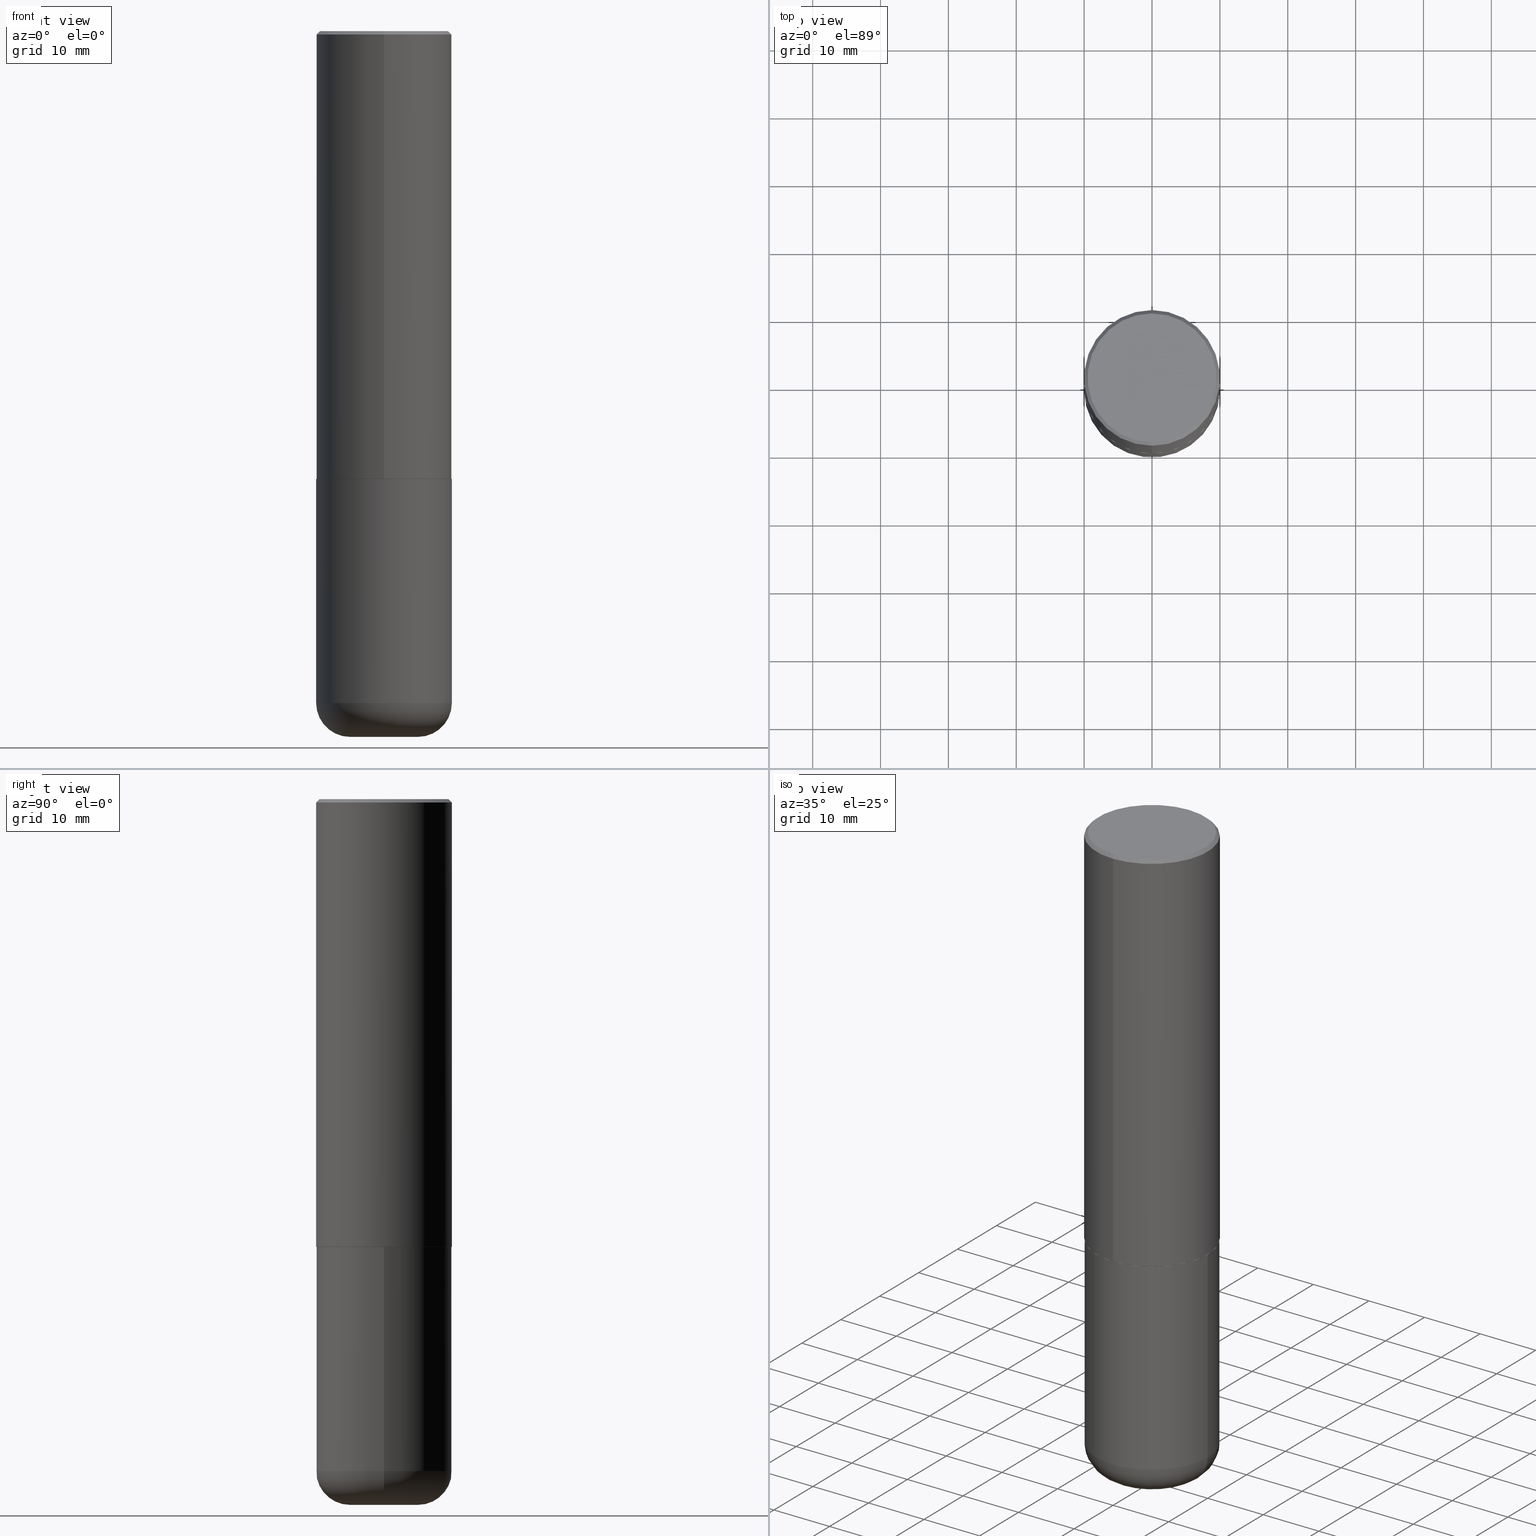
[diagram: canonical four-view strip — front | top / right | iso, engineering-drawing reading convention]
A machine part, canonical four-view strip (front | top / right | iso — engineering-drawing reading convention). The complete STEP part file that produces these views, byte-faithful:
ISO-10303-21;
HEADER;
FILE_DESCRIPTION (( 'STEP AP203' ),
    '1' );
FILE_NAME ('46869.STEP',
    '2024-03-05T05:34:44',
    ( '' ),
    ( '' ),
    'SwSTEP 2.0',
    'SolidWorks 2023',
    '' );
FILE_SCHEMA (( 'CONFIG_CONTROL_DESIGN' ));
ENDSEC;

DATA;
#1 = FACE_OUTER_BOUND ( 'NONE', #233, .T. ) ;
#2 = ORIENTED_EDGE ( 'NONE', *, *, #174, .F. ) ;
#3 = CIRCLE ( 'NONE', #248, 0.3937000000000002720 ) ;
#4 = FACE_OUTER_BOUND ( 'NONE', #323, .T. ) ;
#5 = CC_DESIGN_APPROVAL ( #382, ( #288 ) ) ;
#6 = ORIENTED_EDGE ( 'NONE', *, *, #39, .T. ) ;
#7 = PLANE ( 'NONE',  #223 ) ;
#8 = DIRECTION ( 'NONE',  ( -2.443239332009390457E-29, 3.494674072756603537E-15, 1.000000000000000000 ) ) ;
#9 = CARTESIAN_POINT ( 'NONE',  ( 4.886478664018802704E-31, -6.989348145513235967E-17, -0.02000000000000008715 ) ) ;
#10 = DIRECTION ( 'NONE',  ( -2.443239332009390737E-29, 3.494674072756603537E-15, 1.000000000000000000 ) ) ;
#11 = COORDINATED_UNIVERSAL_TIME_OFFSET ( 5, 0, .BEHIND. ) ;
#12 = CIRCLE ( 'NONE', #104, 0.3736999999999999211 ) ;
#13 =( GEOMETRIC_REPRESENTATION_CONTEXT ( 3 ) GLOBAL_UNCERTAINTY_ASSIGNED_CONTEXT ( ( #209 ) ) GLOBAL_UNIT_ASSIGNED_CONTEXT ( ( #237, #348, #187 ) ) REPRESENTATION_CONTEXT ( 'NONE', 'WORKASPACE' ) );
#14 = DIRECTION ( 'NONE',  ( -2.445468806185136877E-29, 3.491481338843145188E-15, 1.000000000000000000 ) ) ;
#15 = PERSON_AND_ORGANIZATION ( #222, #96 ) ;
#16 = CARTESIAN_POINT ( 'NONE',  ( -2.700978061722651252E-15, -0.3937000000000001054, -0.01999999999999870978 ) ) ;
#17 = CARTESIAN_POINT ( 'NONE',  ( 0.000000000000000000, 0.000000000000000000, 0.000000000000000000 ) ) ;
#18 = DIRECTION ( 'NONE',  ( 6.982962677686265922E-15, 1.000000000000000000, -3.494674072756603537E-15 ) ) ;
#19 = MANIFOLD_SOLID_BREP ( 'Body-Move/Copy2[2]', #21 ) ;
#20 = COORDINATED_UNIVERSAL_TIME_OFFSET ( 5, 0, .BEHIND. ) ;
#21 = CLOSED_SHELL ( 'NONE', ( #180, #405, #304, #379, #152, #144, #193, #238 ) ) ;
#22 = DIRECTION ( 'NONE',  ( 1.000000000000000000, -6.982962677686267499E-15, 0.000000000000000000 ) ) ;
#23 = ORIENTED_EDGE ( 'NONE', *, *, #30, .F. ) ;
#24 = EDGE_CURVE ( 'NONE', #324, #380, #330, .T. ) ;
#25 = CARTESIAN_POINT ( 'NONE',  ( 6.346069840961192103E-29, -9.077066436578000720E-15, -2.597399999999999931 ) ) ;
#26 = CIRCLE ( 'NONE', #299, 0.3926999999999999935 ) ;
#27 = CC_DESIGN_SECURITY_CLASSIFICATION ( #288, ( #331 ) ) ;
#28 = MANIFOLD_SOLID_BREP ( 'Body-Move/Copy2[1]', #313 ) ;
#29 = CARTESIAN_POINT ( 'NONE',  ( 4.886478664018802704E-31, -6.989348145513235967E-17, -0.02000000000000008715 ) ) ;
#30 = EDGE_CURVE ( 'NONE', #236, #157, #206, .T. ) ;
#31 = ORIENTED_EDGE ( 'NONE', *, *, #271, .T. ) ;
#32 = APPROVAL ( #170, 'UNSPECIFIED' ) ;
#33 = ORIENTED_EDGE ( 'NONE', *, *, #136, .T. ) ;
#34 = CIRCLE ( 'NONE', #274, 0.1968000000000000582 ) ;
#35 = ORIENTED_EDGE ( 'NONE', *, *, #24, .T. ) ;
#36 = ORIENTED_EDGE ( 'NONE', *, *, #284, .F. ) ;
#37 = DIRECTION ( 'NONE',  ( 1.000000000000000000, -6.982962677686269077E-15, 4.883557194083114022E-29 ) ) ;
#38 = ORIENTED_EDGE ( 'NONE', *, *, #186, .T. ) ;
#39 = EDGE_CURVE ( 'NONE', #63, #268, #89, .T. ) ;
#40 = AXIS2_PLACEMENT_3D ( 'NONE', #29, #74, #195 ) ;
#41 = CARTESIAN_POINT ( 'NONE',  ( -2.749192406205021291E-15, -0.3937000000000093758, -2.597399999999998155 ) ) ;
#42 = CYLINDRICAL_SURFACE ( 'NONE', #68, 0.3937000000000000499 ) ;
#43 = FACE_OUTER_BOUND ( 'NONE', #216, .T. ) ;
#44 = PERSON_AND_ORGANIZATION ( #222, #96 ) ;
#45 = CARTESIAN_POINT ( 'NONE',  ( -0.1968000000000000582, -1.185425657675245696E-14, -4.094500000000000028 ) ) ;
#46 = PERSON_AND_ORGANIZATION ( #222, #96 ) ;
#47 = AXIS2_PLACEMENT_3D ( 'NONE', #377, #221, #86 ) ;
#48 = LOCAL_TIME ( 0, 34, 44.00000000000000000, #175 ) ;
#49 = ADVANCED_FACE ( 'NONE', ( #50 ), #340, .T. ) ;
#50 = FACE_OUTER_BOUND ( 'NONE', #389, .T. ) ;
#51 = LINE ( 'NONE', #16, #352 ) ;
#52 = APPROVAL ( #83, 'UNSPECIFIED' ) ;
#53 = APPLICATION_PROTOCOL_DEFINITION ( 'international standard', 'config_control_design', 1994, #414 ) ;
#54 = DIRECTION ( 'NONE',  ( -2.445468806185136597E-29, 3.491481338843145583E-15, 1.000000000000000000 ) ) ;
#55 = APPROVAL_STATUS ( 'not_yet_approved' ) ;
#56 = CIRCLE ( 'NONE', #138, 0.3937000000000002720 ) ;
#57 = DIRECTION ( 'NONE',  ( -2.445468806185136597E-29, 3.491481338843145583E-15, 1.000000000000000000 ) ) ;
#58 = CC_DESIGN_APPROVAL ( #52, ( #331 ) ) ;
#59 = DIRECTION ( 'NONE',  ( -6.982962677686265133E-15, -1.000000000000000000, 4.173946514383900962E-15 ) ) ;
#60 = ORIENTED_EDGE ( 'NONE', *, *, #401, .T. ) ;
#61 = CARTESIAN_POINT ( 'NONE',  ( 6.354306145991459756E-29, -9.072265110850031044E-15, -2.598400000000000265 ) ) ;
#62 = EDGE_CURVE ( 'NONE', #64, #350, #177, .T. ) ;
#63 = VERTEX_POINT ( 'NONE', #173 ) ;
#64 = VERTEX_POINT ( 'NONE', #45 ) ;
#65 = EDGE_CURVE ( 'NONE', #236, #349, #395, .T. ) ;
#66 = ORIENTED_EDGE ( 'NONE', *, *, #217, .T. ) ;
#67 = PRODUCT ( '46869', '46869', '', ( #111 ) ) ;
#68 = AXIS2_PLACEMENT_3D ( 'NONE', #234, #106, #127 ) ;
#69 = ORIENTED_EDGE ( 'NONE', *, *, #65, .F. ) ;
#70 = CARTESIAN_POINT ( 'NONE',  ( -4.513619861201807074E-45, 6.456031587477974852E-31, 1.847391617377768550E-16 ) ) ;
#71 = EDGE_LOOP ( 'NONE', ( #197, #31, #124, #327 ) ) ;
#72 = DIRECTION ( 'NONE',  ( -2.445468806185136597E-29, 3.491481338843145583E-15, 1.000000000000000000 ) ) ;
#73 = DIRECTION ( 'NONE',  ( -2.443239332009390737E-29, 3.494674072756603537E-15, 1.000000000000000000 ) ) ;
#74 = DIRECTION ( 'NONE',  ( 2.443239332009390737E-29, -3.494674072756603537E-15, -1.000000000000000000 ) ) ;
#75 = LINE ( 'NONE', #205, #386 ) ;
#76 = CARTESIAN_POINT ( 'NONE',  ( 2.790301323329976493E-15, 0.3926999999999909452, -2.598400000000002041 ) ) ;
#77 = FACE_OUTER_BOUND ( 'NONE', #258, .T. ) ;
#78 = APPROVAL_ROLE ( '' ) ;
#79 = AXIS2_PLACEMENT_3D ( 'NONE', #150, #184, #408 ) ;
#80 = CONICAL_SURFACE ( 'NONE', #40, 0.3937000000000000499, 0.7853981633974447263 ) ;
#81 = DIRECTION ( 'NONE',  ( -4.851104656540946920E-15, -0.7071067811865474617, -0.7071067811865475727 ) ) ;
#82 = DIRECTION ( 'NONE',  ( -2.443239332009390177E-29, 3.494674072756603537E-15, 1.000000000000000000 ) ) ;
#83 = APPROVAL_STATUS ( 'not_yet_approved' ) ;
#84 = DIRECTION ( 'NONE',  ( 1.000000000000000000, -6.982962677686267499E-15, 0.000000000000000000 ) ) ;
#85 = ORIENTED_EDGE ( 'NONE', *, *, #196, .F. ) ;
#86 = DIRECTION ( 'NONE',  ( 1.000000000000000000, -6.982962677686269077E-15, 4.883557194083114022E-29 ) ) ;
#87 = DIRECTION ( 'NONE',  ( 1.000000000000000000, -6.982962677686265922E-15, 4.876176775795935793E-29 ) ) ;
#88 = CC_DESIGN_PERSON_AND_ORGANIZATION_ASSIGNMENT ( #15, #167, ( #331 ) ) ;
#89 = CIRCLE ( 'NONE', #381, 0.3937000000000000499 ) ;
#90 = PRODUCT_DEFINITION_SHAPE ( 'NONE', 'NONE',  #176 ) ;
#91 = ORIENTED_EDGE ( 'NONE', *, *, #256, .T. ) ;
#92 = ORIENTED_EDGE ( 'NONE', *, *, #256, .F. ) ;
#93 = DIRECTION ( 'NONE',  ( -6.982962677686266711E-15, -1.000000000000000000, 3.491481338843145583E-15 ) ) ;
#94 = ORIENTED_EDGE ( 'NONE', *, *, #401, .F. ) ;
#95 = CONICAL_SURFACE ( 'NONE', #369, 0.3926999999999999935, 0.7853981633974141952 ) ;
#96 = ORGANIZATION ( 'UNSPECIFIED', 'UNSPECIFIED', '' ) ;
#97 = CARTESIAN_POINT ( 'NONE',  ( 0.000000000000000000, 0.000000000000000000, 0.000000000000000000 ) ) ;
#98 = ORIENTED_EDGE ( 'NONE', *, *, #271, .F. ) ;
#99 = EDGE_CURVE ( 'NONE', #125, #63, #107, .T. ) ;
#100 = CARTESIAN_POINT ( 'NONE',  ( -2.742209443527332910E-15, -0.3927000000000090973, -2.598399999999998489 ) ) ;
#101 = FACE_OUTER_BOUND ( 'NONE', #188, .T. ) ;
#102 = CC_DESIGN_DATE_AND_TIME_ASSIGNMENT ( #208, #113, ( #288 ) ) ;
#103 = CARTESIAN_POINT ( 'NONE',  ( 2.679362779428219918E-15, 0.3736999999999999211, -1.121220539251365287E-15 ) ) ;
#104 = AXIS2_PLACEMENT_3D ( 'NONE', #344, #412, #345 ) ;
#105 = LOCAL_TIME ( 0, 34, 44.00000000000000000, #20 ) ;
#106 = DIRECTION ( 'NONE',  ( -2.445468806185136597E-29, 3.491481338843145583E-15, 1.000000000000000000 ) ) ;
#107 = LINE ( 'NONE', #110, #160 ) ;
#108 = EDGE_CURVE ( 'NONE', #324, #64, #34, .T. ) ;
#109 = PERSON_AND_ORGANIZATION ( #222, #96 ) ;
#110 = CARTESIAN_POINT ( 'NONE',  ( 2.749192406205083217E-15, 0.3936999999999999389, -0.02000000000000146105 ) ) ;
#111 = MECHANICAL_CONTEXT ( 'NONE', #132, 'mechanical' ) ;
#112 = FACE_OUTER_BOUND ( 'NONE', #287, .T. ) ;
#113 = DATE_TIME_ROLE ( 'classification_date' ) ;
#114 = AXIS2_PLACEMENT_3D ( 'NONE', #342, #54, #22 ) ;
#115 = EDGE_CURVE ( 'NONE', #380, #189, #75, .T. ) ;
#116 = FACE_OUTER_BOUND ( 'NONE', #353, .T. ) ;
#117 = LINE ( 'NONE', #215, #308 ) ;
#118 = ORIENTED_EDGE ( 'NONE', *, *, #136, .F. ) ;
#119 = AXIS2_PLACEMENT_3D ( 'NONE', #9, #257, #356 ) ;
#120 = ORIENTED_EDGE ( 'NONE', *, *, #30, .T. ) ;
#121 = DIRECTION ( 'NONE',  ( -4.937700262164378437E-15, -0.7071067811865208164, 0.7071067811865739960 ) ) ;
#122 = DIRECTION ( 'NONE',  ( -2.443239332009390737E-29, 3.494674072756603537E-15, 1.000000000000000000 ) ) ;
#123 = CONICAL_SURFACE ( 'NONE', #374, 0.3926999999999999935, 0.7853981633974141952 ) ;
#124 = ORIENTED_EDGE ( 'NONE', *, *, #129, .T. ) ;
#125 = VERTEX_POINT ( 'NONE', #103 ) ;
#126 = VERTEX_POINT ( 'NONE', #239 ) ;
#127 = DIRECTION ( 'NONE',  ( 1.000000000000000000, -6.982962677686265922E-15, 4.876176775795935793E-29 ) ) ;
#128 = ORIENTED_EDGE ( 'NONE', *, *, #129, .F. ) ;
#129 = EDGE_CURVE ( 'NONE', #182, #268, #366, .T. ) ;
#130 =( LENGTH_UNIT ( ) NAMED_UNIT ( * ) SI_UNIT ( $, .METRE. ) );
#131 = DIRECTION ( 'NONE',  ( -6.982962677686265133E-15, -1.000000000000000000, 4.173946514383900962E-15 ) ) ;
#132 = APPLICATION_CONTEXT ( 'configuration controlled 3d designs of mechanical parts and assemblies' ) ;
#133 = DIRECTION ( 'NONE',  ( -1.000000000000000000, 6.982962677686265922E-15, -4.876176775795935793E-29 ) ) ;
#134 = DIRECTION ( 'NONE',  ( -6.982962677686265922E-15, -1.000000000000000000, 4.163344669033672479E-15 ) ) ;
#135 = LENGTH_MEASURE_WITH_UNIT ( LENGTH_MEASURE( 0.02539999999999999897 ), #130 );
#136 = EDGE_CURVE ( 'NONE', #350, #126, #139, .T. ) ;
#137 = DIRECTION ( 'NONE',  ( -2.445468806185136597E-29, 3.491481338843145583E-15, 1.000000000000000000 ) ) ;
#138 = AXIS2_PLACEMENT_3D ( 'NONE', #141, #399, #134 ) ;
#139 = LINE ( 'NONE', #171, #267 ) ;
#140 = APPROVAL_ROLE ( '' ) ;
#141 = CARTESIAN_POINT ( 'NONE',  ( 6.346069840961192103E-29, -9.077066436578000720E-15, -2.597399999999999931 ) ) ;
#142 = CALENDAR_DATE ( 2024, 5, 3 ) ;
#143 = DIRECTION ( 'NONE',  ( -2.445468806185136597E-29, 3.491481338843145583E-15, 1.000000000000000000 ) ) ;
#144 = ADVANCED_FACE ( 'NONE', ( #77 ), #95, .T. ) ;
#145 = CARTESIAN_POINT ( 'NONE',  ( 2.793854037008779363E-15, 0.3926999999999909452, -2.598400000000002041 ) ) ;
#146 = CALENDAR_DATE ( 2024, 5, 3 ) ;
#147 = ORIENTED_EDGE ( 'NONE', *, *, #217, .F. ) ;
#148 = EDGE_LOOP ( 'NONE', ( #292, #33, #147, #297 ) ) ;
#149 = CIRCLE ( 'NONE', #114, 0.3937000000000000499 ) ;
#150 = CARTESIAN_POINT ( 'NONE',  ( 6.354306145991459756E-29, -9.072265110850031044E-15, -2.598400000000000265 ) ) ;
#151 = CARTESIAN_POINT ( 'NONE',  ( 0.1968000000000000582, -1.567011739686191959E-14, -4.094500000000000028 ) ) ;
#152 = ADVANCED_FACE ( 'NONE', ( #392 ), #202, .T. ) ;
#153 = APPLICATION_PROTOCOL_DEFINITION ( 'international standard', 'config_control_design', 1994, #132 ) ;
#154 = ORIENTED_EDGE ( 'NONE', *, *, #108, .F. ) ;
#155 = EDGE_LOOP ( 'NONE', ( #417, #262, #35, #85 ) ) ;
#156 = ORIENTED_EDGE ( 'NONE', *, *, #210, .T. ) ;
#157 = VERTEX_POINT ( 'NONE', #100 ) ;
#158 = CARTESIAN_POINT ( 'NONE',  ( -0.3936999999999999389, -1.081099091558753178E-14, -3.897600000000000620 ) ) ;
#159 = ORIENTED_EDGE ( 'NONE', *, *, #196, .T. ) ;
#160 = VECTOR ( 'NONE', #390, 39.37007874015748143 ) ;
#161 = CC_DESIGN_DATE_AND_TIME_ASSIGNMENT ( #371, #397, ( #176 ) ) ;
#162 = LINE ( 'NONE', #303, #360 ) ;
#163 = CARTESIAN_POINT ( 'NONE',  ( -2.632373081744935921E-15, -0.3736999999999999211, 1.490698862726919145E-15 ) ) ;
#164 = EDGE_CURVE ( 'NONE', #410, #268, #51, .T. ) ;
#165 = PLANE ( 'NONE',  #416 ) ;
#166 = DIMENSIONAL_EXPONENTS ( 1.000000000000000000, 0.000000000000000000, 0.000000000000000000, 0.000000000000000000, 0.000000000000000000, 0.000000000000000000, 0.000000000000000000 ) ;
#167 = PERSON_AND_ORGANIZATION_ROLE ( 'creator' ) ;
#168 = CARTESIAN_POINT ( 'NONE',  ( 1.001297202692504215E-28, -1.429587034189326149E-14, -4.094500000000000028 ) ) ;
#169 = AXIS2_PLACEMENT_3D ( 'NONE', #251, #318, #317 ) ;
#170 = APPROVAL_STATUS ( 'not_yet_approved' ) ;
#171 = CARTESIAN_POINT ( 'NONE',  ( -0.3937000000000000499, 2.797406750687514786E-15, -1.936584745033356735E-29 ) ) ;
#172 = APPROVAL_ROLE ( '' ) ;
#173 = CARTESIAN_POINT ( 'NONE',  ( 2.749192406205083217E-15, 0.3936999999999999389, -0.02000000000000146105 ) ) ;
#174 = EDGE_CURVE ( 'NONE', #182, #349, #56, .T. ) ;
#175 = COORDINATED_UNIVERSAL_TIME_OFFSET ( 5, 0, .BEHIND. ) ;
#176 = PRODUCT_DEFINITION ( 'UNKNOWN', '', #331, #228 ) ;
#177 = CIRCLE ( 'NONE', #259, 0.1968999999999999084 ) ;
#178 = APPROVAL_PERSON_ORGANIZATION ( #109, #382, #140 ) ;
#179 = DIRECTION ( 'NONE',  ( -2.443239332009390737E-29, 3.494674072756603537E-15, 1.000000000000000000 ) ) ;
#180 = ADVANCED_FACE ( 'NONE', ( #112 ), #123, .T. ) ;
#181 = CARTESIAN_POINT ( 'NONE',  ( -2.700978061722651252E-15, -0.3937000000000001054, -0.01999999999999870978 ) ) ;
#182 = VERTEX_POINT ( 'NONE', #41 ) ;
#183 = VECTOR ( 'NONE', #277, 39.37007874015748143 ) ;
#184 = DIRECTION ( 'NONE',  ( -2.445468806185136597E-29, 3.491481338843145583E-15, 1.000000000000000000 ) ) ;
#185 = TOROIDAL_SURFACE ( 'NONE', #320, 0.1968000000000000305, 0.1968999999999998807 ) ;
#186 = EDGE_CURVE ( 'NONE', #349, #63, #162, .T. ) ;
#187 =( NAMED_UNIT ( * ) SI_UNIT ( $, .STERADIAN. ) SOLID_ANGLE_UNIT ( ) );
#188 = EDGE_LOOP ( 'NONE', ( #194, #351, #385, #6 ) ) ;
#189 = VERTEX_POINT ( 'NONE', #272 ) ;
#190 = AXIS2_PLACEMENT_3D ( 'NONE', #61, #143, #84 ) ;
#191 = CIRCLE ( 'NONE', #347, 0.1968000000000000582 ) ;
#192 = ORIENTED_EDGE ( 'NONE', *, *, #265, .T. ) ;
#193 = ADVANCED_FACE ( 'NONE', ( #43 ), #165, .F. ) ;
#194 = ORIENTED_EDGE ( 'NONE', *, *, #164, .F. ) ;
#195 = DIRECTION ( 'NONE',  ( 6.982962677686265133E-15, 1.000000000000000000, -3.491137977679279424E-15 ) ) ;
#196 = EDGE_CURVE ( 'NONE', #350, #380, #242, .T. ) ;
#197 = ORIENTED_EDGE ( 'NONE', *, *, #186, .F. ) ;
#198 = DIRECTION ( 'NONE',  ( -2.443239332009390737E-29, 3.494674072756603537E-15, 1.000000000000000000 ) ) ;
#199 = CARTESIAN_POINT ( 'NONE',  ( 1.001297202692504215E-28, -1.429587034189326149E-14, -4.094500000000000028 ) ) ;
#200 = AXIS2_PLACEMENT_3D ( 'NONE', #199, #335, #273 ) ;
#201 = DIRECTION ( 'NONE',  ( -2.445468806185136597E-29, 3.491481338843145583E-15, 1.000000000000000000 ) ) ;
#202 = CYLINDRICAL_SURFACE ( 'NONE', #325, 0.3937000000000001609 ) ;
#203 = CALENDAR_DATE ( 2024, 5, 3 ) ;
#204 = DIRECTION ( 'NONE',  ( -6.982962677686265133E-15, -1.000000000000000000, 4.173946514383900962E-15 ) ) ;
#205 = CARTESIAN_POINT ( 'NONE',  ( 0.3937000000000000499, -2.749192406205083217E-15, 1.919750796630860172E-29 ) ) ;
#206 = CIRCLE ( 'NONE', #393, 0.3926999999999999935 ) ;
#207 = LOCAL_TIME ( 0, 34, 44.00000000000000000, #11 ) ;
#208 = DATE_AND_TIME ( #146, #48 ) ;
#209 = UNCERTAINTY_MEASURE_WITH_UNIT (LENGTH_MEASURE( 1.000000000000000082E-05 ), #237, 'distance_accuracy_value', 'NONE');
#210 = EDGE_CURVE ( 'NONE', #126, #189, #346, .T. ) ;
#211 = CARTESIAN_POINT ( 'NONE',  ( 6.348513080293200615E-29, -9.080561110650760527E-15, -2.598400000000000265 ) ) ;
#212 = DIRECTION ( 'NONE',  ( 0.000000000000000000, 0.000000000000000000, 1.000000000000000000 ) ) ;
#213 = CYLINDRICAL_SURFACE ( 'NONE', #231, 0.3937000000000000499 ) ;
#214 = DATE_AND_TIME ( #285, #105 ) ;
#215 = CARTESIAN_POINT ( 'NONE',  ( -2.742209443527332910E-15, -0.3927000000000090973, -2.598399999999998489 ) ) ;
#216 = EDGE_LOOP ( 'NONE', ( #252, #23 ) ) ;
#217 = EDGE_CURVE ( 'NONE', #189, #126, #338, .T. ) ;
#218 = LOCAL_TIME ( 0, 34, 44.00000000000000000, #309 ) ;
#219 = CARTESIAN_POINT ( 'NONE',  ( 2.609533152651356620E-15, 0.3736999999999999211, -1.213590120120253998E-15 ) ) ;
#220 = ORIENTED_EDGE ( 'NONE', *, *, #99, .F. ) ;
#221 = DIRECTION ( 'NONE',  ( -2.445468806185136597E-29, 3.491481338843145583E-15, 1.000000000000000000 ) ) ;
#222 = PERSON ( 'UNSPECIFIED', 'UNSPECIFIED', 'UNSPECIFIED', ('UNSPECIFIED'), ('UNSPECIFIED'), ('UNSPECIFIED') ) ;
#223 = AXIS2_PLACEMENT_3D ( 'NONE', #291, #391, #133 ) ;
#224 = LOCAL_TIME ( 0, 34, 44.00000000000000000, #404 ) ;
#225 = EDGE_CURVE ( 'NONE', #157, #182, #117, .T. ) ;
#226 = ORIENTED_EDGE ( 'NONE', *, *, #62, .T. ) ;
#227 = ORIENTED_EDGE ( 'NONE', *, *, #108, .T. ) ;
#228 = DESIGN_CONTEXT ( 'detailed design', #414, 'design' ) ;
#229 = ADVANCED_BREP_SHAPE_REPRESENTATION ( '46869', ( #28, #19, #253 ), #13 ) ;
#230 = EDGE_LOOP ( 'NONE', ( #298, #38, #94, #128 ) ) ;
#231 = AXIS2_PLACEMENT_3D ( 'NONE', #255, #57, #87 ) ;
#232 = APPROVAL_PERSON_ORGANIZATION ( #46, #52, #78 ) ;
#233 = EDGE_LOOP ( 'NONE', ( #227, #226, #36, #264 ) ) ;
#234 = CARTESIAN_POINT ( 'NONE',  ( 0.000000000000000000, 0.000000000000000000, 0.000000000000000000 ) ) ;
#235 = CC_DESIGN_PERSON_AND_ORGANIZATION_ASSIGNMENT ( #279, #246, ( #288 ) ) ;
#236 = VERTEX_POINT ( 'NONE', #145 ) ;
#237 =( CONVERSION_BASED_UNIT ( 'INCH', #135 ) LENGTH_UNIT ( ) NAMED_UNIT ( #166 ) );
#238 = ADVANCED_FACE ( 'NONE', ( #116 ), #289, .F. ) ;
#239 = CARTESIAN_POINT ( 'NONE',  ( -0.3937000000000000499, -8.542924637875024414E-15, -2.598400000000000265 ) ) ;
#240 = CARTESIAN_POINT ( 'NONE',  ( 4.886478664018802704E-31, -6.989348145513235967E-17, -0.02000000000000008715 ) ) ;
#241 = CARTESIAN_POINT ( 'NONE',  ( -2.749192406205084005E-15, -0.3937000000000001609, 1.375853182444275537E-15 ) ) ;
#242 = CIRCLE ( 'NONE', #169, 0.3937000000000000499 ) ;
#243 = FACE_OUTER_BOUND ( 'NONE', #230, .T. ) ;
#244 = DIRECTION ( 'NONE',  ( -2.445468806185136877E-29, 3.491481338843145188E-15, 1.000000000000000000 ) ) ;
#245 = DIRECTION ( 'NONE',  ( 1.000000000000000000, -6.982962677686269866E-15, 0.000000000000000000 ) ) ;
#246 = PERSON_AND_ORGANIZATION_ROLE ( 'classification_officer' ) ;
#247 = DIRECTION ( 'NONE',  ( 1.000000000000000000, -6.982962677686269077E-15, 0.000000000000000000 ) ) ;
#248 = AXIS2_PLACEMENT_3D ( 'NONE', #25, #286, #249 ) ;
#249 = DIRECTION ( 'NONE',  ( -6.982962677686265922E-15, -1.000000000000000000, 4.163344669033672479E-15 ) ) ;
#250 = CALENDAR_DATE ( 2024, 5, 3 ) ;
#251 = CARTESIAN_POINT ( 'NONE',  ( 9.531459218987190195E-29, -1.360839766627504578E-14, -3.897600000000000620 ) ) ;
#252 = ORIENTED_EDGE ( 'NONE', *, *, #265, .F. ) ;
#253 = AXIS2_PLACEMENT_3D ( 'NONE', #17, #212, #312 ) ;
#254 = CARTESIAN_POINT ( 'NONE',  ( 6.348513080293200615E-29, -9.080561110650760527E-15, -2.598400000000000265 ) ) ;
#255 = CARTESIAN_POINT ( 'NONE',  ( 0.000000000000000000, 0.000000000000000000, 0.000000000000000000 ) ) ;
#256 = EDGE_CURVE ( 'NONE', #410, #125, #12, .T. ) ;
#257 = DIRECTION ( 'NONE',  ( 2.443239332009390737E-29, -3.494674072756603537E-15, -1.000000000000000000 ) ) ;
#258 = EDGE_LOOP ( 'NONE', ( #69, #120, #355, #98 ) ) ;
#259 = AXIS2_PLACEMENT_3D ( 'NONE', #398, #280, #311 ) ;
#260 = CC_DESIGN_PERSON_AND_ORGANIZATION_ASSIGNMENT ( #400, #314, ( #331 ) ) ;
#261 = ORIENTED_EDGE ( 'NONE', *, *, #210, .F. ) ;
#262 = ORIENTED_EDGE ( 'NONE', *, *, #376, .T. ) ;
#263 = ADVANCED_FACE ( 'NONE', ( #406 ), #213, .T. ) ;
#264 = ORIENTED_EDGE ( 'NONE', *, *, #24, .F. ) ;
#265 = EDGE_CURVE ( 'NONE', #157, #236, #26, .T. ) ;
#266 = CARTESIAN_POINT ( 'NONE',  ( 2.797406750687547524E-15, 0.3936999999999912236, -2.597400000000001707 ) ) ;
#267 = VECTOR ( 'NONE', #244, 39.37007874015748143 ) ;
#268 = VERTEX_POINT ( 'NONE', #181 ) ;
#269 = CARTESIAN_POINT ( 'NONE',  ( 4.886478664018802704E-31, -6.989348145513235967E-17, -0.02000000000000008715 ) ) ;
#270 = CARTESIAN_POINT ( 'NONE',  ( 9.531459218987190195E-29, -1.360839766627504578E-14, -3.897600000000000620 ) ) ;
#271 = EDGE_CURVE ( 'NONE', #349, #182, #3, .T. ) ;
#272 = CARTESIAN_POINT ( 'NONE',  ( 0.3937000000000000499, -1.182145751705511584E-14, -2.598400000000000265 ) ) ;
#273 = DIRECTION ( 'NONE',  ( -1.000000000000000000, 6.982962677686265922E-15, -4.876176775795935793E-29 ) ) ;
#274 = AXIS2_PLACEMENT_3D ( 'NONE', #168, #137, #245 ) ;
#275 = AXIS2_PLACEMENT_3D ( 'NONE', #97, #354, #333 ) ;
#276 = APPROVAL_DATE_TIME ( #306, #32 ) ;
#277 = DIRECTION ( 'NONE',  ( -2.443239332009390457E-29, 3.494674072756603537E-15, 1.000000000000000000 ) ) ;
#278 = ADVANCED_FACE ( 'NONE', ( #315 ), #411, .T. ) ;
#279 = PERSON_AND_ORGANIZATION ( #222, #96 ) ;
#280 = DIRECTION ( 'NONE',  ( 7.105427357601001859E-15, 1.000000000000000000, -3.491481338843145583E-15 ) ) ;
#281 = PERSON_AND_ORGANIZATION_ROLE ( 'creator' ) ;
#282 = AXIS2_PLACEMENT_3D ( 'NONE', #384, #93, #247 ) ;
#283 = CC_DESIGN_APPROVAL ( #32, ( #176 ) ) ;
#284 = EDGE_CURVE ( 'NONE', #380, #350, #149, .T. ) ;
#285 = CALENDAR_DATE ( 2024, 5, 3 ) ;
#286 = DIRECTION ( 'NONE',  ( -2.443239332009390737E-29, 3.494674072756603537E-15, 1.000000000000000000 ) ) ;
#287 = EDGE_LOOP ( 'NONE', ( #192, #296, #2, #415 ) ) ;
#288 = SECURITY_CLASSIFICATION ( '', '', #336 ) ;
#289 = PLANE ( 'NONE',  #403 ) ;
#290 = FACE_OUTER_BOUND ( 'NONE', #148, .T. ) ;
#291 = CARTESIAN_POINT ( 'NONE',  ( 6.354306145991459756E-29, -9.072265110850031044E-15, -2.598400000000000265 ) ) ;
#292 = ORIENTED_EDGE ( 'NONE', *, *, #284, .T. ) ;
#293 = VECTOR ( 'NONE', #305, 39.37007874015748854 ) ;
#294 = CONICAL_SURFACE ( 'NONE', #119, 0.3937000000000000499, 0.7853981633974447263 ) ;
#295 = ADVANCED_FACE ( 'NONE', ( #302 ), #7, .F. ) ;
#296 = ORIENTED_EDGE ( 'NONE', *, *, #65, .T. ) ;
#297 = ORIENTED_EDGE ( 'NONE', *, *, #115, .F. ) ;
#298 = ORIENTED_EDGE ( 'NONE', *, *, #174, .T. ) ;
#299 = AXIS2_PLACEMENT_3D ( 'NONE', #254, #179, #59 ) ;
#300 = CIRCLE ( 'NONE', #394, 0.3937000000000000499 ) ;
#301 = EDGE_LOOP ( 'NONE', ( #66, #156 ) ) ;
#302 = FACE_OUTER_BOUND ( 'NONE', #301, .T. ) ;
#303 = CARTESIAN_POINT ( 'NONE',  ( 2.797406750687515181E-15, 0.3937000000000001609, -1.375853182444275537E-15 ) ) ;
#304 = ADVANCED_FACE ( 'NONE', ( #4 ), #80, .T. ) ;
#305 = DIRECTION ( 'NONE',  ( 5.024295867787889629E-15, 0.7071067811865257013, 0.7071067811865691111 ) ) ;
#306 = DATE_AND_TIME ( #142, #224 ) ;
#307 = DIRECTION ( 'NONE',  ( -6.982962677686265133E-15, -1.000000000000000000, 4.173946514383900962E-15 ) ) ;
#308 = VECTOR ( 'NONE', #121, 39.37007874015748854 ) ;
#309 = COORDINATED_UNIVERSAL_TIME_OFFSET ( 5, 0, .BEHIND. ) ;
#310 = DIRECTION ( 'NONE',  ( -2.443239332009390737E-29, 3.494674072756603537E-15, 1.000000000000000000 ) ) ;
#311 = DIRECTION ( 'NONE',  ( -1.000000000000000000, 7.105427357600995548E-15, 0.000000000000000000 ) ) ;
#312 = DIRECTION ( 'NONE',  ( 1.000000000000000000, 0.000000000000000000, 0.000000000000000000 ) ) ;
#313 = CLOSED_SHELL ( 'NONE', ( #357, #319, #295, #263, #278, #49 ) ) ;
#314 = PERSON_AND_ORGANIZATION_ROLE ( 'design_supplier' ) ;
#315 = FACE_OUTER_BOUND ( 'NONE', #155, .T. ) ;
#316 = EDGE_LOOP ( 'NONE', ( #118, #159, #418, #261 ) ) ;
#317 = DIRECTION ( 'NONE',  ( 1.000000000000000000, -6.982962677686267499E-15, 0.000000000000000000 ) ) ;
#318 = DIRECTION ( 'NONE',  ( -2.445468806185136597E-29, 3.491481338843145583E-15, 1.000000000000000000 ) ) ;
#319 = ADVANCED_FACE ( 'NONE', ( #1 ), #185, .T. ) ;
#320 = AXIS2_PLACEMENT_3D ( 'NONE', #270, #72, #37 ) ;
#321 = CYLINDRICAL_SURFACE ( 'NONE', #275, 0.3937000000000001609 ) ;
#322 = PRODUCT_RELATED_PRODUCT_CATEGORY ( 'detail', '', ( #67 ) ) ;
#323 = EDGE_LOOP ( 'NONE', ( #92, #383, #60, #220 ) ) ;
#324 = VERTEX_POINT ( 'NONE', #151 ) ;
#325 = AXIS2_PLACEMENT_3D ( 'NONE', #334, #368, #332 ) ;
#326 = ORIENTED_EDGE ( 'NONE', *, *, #409, .T. ) ;
#327 = ORIENTED_EDGE ( 'NONE', *, *, #39, .F. ) ;
#328 = CARTESIAN_POINT ( 'NONE',  ( 1.001297202692504215E-28, -1.429587034189326149E-14, -4.094500000000000028 ) ) ;
#329 = ORIENTED_EDGE ( 'NONE', *, *, #376, .F. ) ;
#330 = CIRCLE ( 'NONE', #282, 0.1968999999999999084 ) ;
#331 = PRODUCT_DEFINITION_FORMATION_WITH_SPECIFIED_SOURCE ( 'ANY', '', #67, .NOT_KNOWN. ) ;
#332 = DIRECTION ( 'NONE',  ( -6.982962677686265922E-15, -1.000000000000000000, 3.494674072756603932E-15 ) ) ;
#333 = DIRECTION ( 'NONE',  ( -6.982962677686265922E-15, -1.000000000000000000, 3.494674072756603932E-15 ) ) ;
#334 = CARTESIAN_POINT ( 'NONE',  ( 0.000000000000000000, 0.000000000000000000, 0.000000000000000000 ) ) ;
#335 = DIRECTION ( 'NONE',  ( 2.438088387897960049E-29, -3.491481338843145188E-15, -1.000000000000000000 ) ) ;
#336 = SECURITY_CLASSIFICATION_LEVEL ( 'unclassified' ) ;
#337 = DIRECTION ( 'NONE',  ( -6.982962677686265133E-15, -1.000000000000000000, 3.491137977679279424E-15 ) ) ;
#338 = CIRCLE ( 'NONE', #79, 0.3937000000000000499 ) ;
#339 = AXIS2_PLACEMENT_3D ( 'NONE', #70, #122, #359 ) ;
#340 = PLANE ( 'NONE',  #200 ) ;
#341 = APPROVAL_DATE_TIME ( #214, #52 ) ;
#342 = CARTESIAN_POINT ( 'NONE',  ( 9.531459218987190195E-29, -1.360839766627504578E-14, -3.897600000000000620 ) ) ;
#343 = PERSON_AND_ORGANIZATION ( #222, #96 ) ;
#344 = CARTESIAN_POINT ( 'NONE',  ( -4.513619861201807074E-45, 6.456031587477974852E-31, 1.847391617377768550E-16 ) ) ;
#345 = DIRECTION ( 'NONE',  ( -6.982962677686265133E-15, -1.000000000000000000, 3.494674072756603143E-15 ) ) ;
#346 = CIRCLE ( 'NONE', #190, 0.3937000000000000499 ) ;
#347 = AXIS2_PLACEMENT_3D ( 'NONE', #328, #201, #362 ) ;
#348 =( NAMED_UNIT ( * ) PLANE_ANGLE_UNIT ( ) SI_UNIT ( $, .RADIAN. ) );
#349 = VERTEX_POINT ( 'NONE', #266 ) ;
#350 = VERTEX_POINT ( 'NONE', #158 ) ;
#351 = ORIENTED_EDGE ( 'NONE', *, *, #409, .F. ) ;
#352 = VECTOR ( 'NONE', #81, 39.37007874015748143 ) ;
#353 = EDGE_LOOP ( 'NONE', ( #326, #91 ) ) ;
#354 = DIRECTION ( 'NONE',  ( -2.443239332009390737E-29, 3.494674072756603537E-15, 1.000000000000000000 ) ) ;
#355 = ORIENTED_EDGE ( 'NONE', *, *, #225, .T. ) ;
#356 = DIRECTION ( 'NONE',  ( 6.982962677686265133E-15, 1.000000000000000000, -3.491137977679279424E-15 ) ) ;
#357 = ADVANCED_FACE ( 'NONE', ( #290 ), #42, .T. ) ;
#358 = CARTESIAN_POINT ( 'NONE',  ( 6.348513080293200615E-29, -9.080561110650760527E-15, -2.598400000000000265 ) ) ;
#359 = DIRECTION ( 'NONE',  ( -6.982962677686265133E-15, -1.000000000000000000, 3.494674072756603143E-15 ) ) ;
#360 = VECTOR ( 'NONE', #8, 39.37007874015748143 ) ;
#361 = DIRECTION ( 'NONE',  ( -2.443239332009390737E-29, 3.494674072756603537E-15, 1.000000000000000000 ) ) ;
#362 = DIRECTION ( 'NONE',  ( 1.000000000000000000, -6.982962677686269866E-15, 0.000000000000000000 ) ) ;
#363 = CARTESIAN_POINT ( 'NONE',  ( 6.348513080293200615E-29, -9.080561110650760527E-15, -2.598400000000000265 ) ) ;
#364 = CC_DESIGN_PERSON_AND_ORGANIZATION_ASSIGNMENT ( #343, #281, ( #176 ) ) ;
#365 = PERSON_AND_ORGANIZATION ( #222, #96 ) ;
#366 = LINE ( 'NONE', #241, #183 ) ;
#367 = SHAPE_DEFINITION_REPRESENTATION ( #90, #229 ) ;
#368 = DIRECTION ( 'NONE',  ( -2.443239332009390737E-29, 3.494674072756603537E-15, 1.000000000000000000 ) ) ;
#369 = AXIS2_PLACEMENT_3D ( 'NONE', #363, #310, #307 ) ;
#370 = DATE_AND_TIME ( #203, #207 ) ;
#371 = DATE_AND_TIME ( #250, #218 ) ;
#372 = PERSON_AND_ORGANIZATION_ROLE ( 'design_owner' ) ;
#373 = CARTESIAN_POINT ( 'NONE',  ( 6.348513080293200615E-29, -9.080561110650760527E-15, -2.598400000000000265 ) ) ;
#374 = AXIS2_PLACEMENT_3D ( 'NONE', #358, #10, #131 ) ;
#375 = CIRCLE ( 'NONE', #339, 0.3736999999999999211 ) ;
#376 = EDGE_CURVE ( 'NONE', #64, #324, #191, .T. ) ;
#377 = CARTESIAN_POINT ( 'NONE',  ( 9.531459218987190195E-29, -1.360839766627504578E-14, -3.897600000000000620 ) ) ;
#378 = DIRECTION ( 'NONE',  ( 2.443239332009390177E-29, -3.494674072756603537E-15, -1.000000000000000000 ) ) ;
#379 = ADVANCED_FACE ( 'NONE', ( #101 ), #294, .T. ) ;
#380 = VERTEX_POINT ( 'NONE', #387 ) ;
#381 = AXIS2_PLACEMENT_3D ( 'NONE', #269, #361, #337 ) ;
#382 = APPROVAL ( #55, 'UNSPECIFIED' ) ;
#383 = ORIENTED_EDGE ( 'NONE', *, *, #164, .T. ) ;
#384 = CARTESIAN_POINT ( 'NONE',  ( 0.1968000000000000305, -1.498264472124370230E-14, -3.897600000000000620 ) ) ;
#385 = ORIENTED_EDGE ( 'NONE', *, *, #99, .T. ) ;
#386 = VECTOR ( 'NONE', #14, 39.37007874015748143 ) ;
#387 = CARTESIAN_POINT ( 'NONE',  ( 0.3936999999999999389, -1.635759007248013057E-14, -3.897600000000000620 ) ) ;
#388 = APPROVAL_PERSON_ORGANIZATION ( #44, #32, #172 ) ;
#389 = EDGE_LOOP ( 'NONE', ( #154, #329 ) ) ;
#390 = DIRECTION ( 'NONE',  ( 4.937700262164529898E-15, 0.7071067811865425767, -0.7071067811865524577 ) ) ;
#391 = DIRECTION ( 'NONE',  ( 2.438088387897960049E-29, -3.491481338843145188E-15, -1.000000000000000000 ) ) ;
#392 = FACE_OUTER_BOUND ( 'NONE', #71, .T. ) ;
#393 = AXIS2_PLACEMENT_3D ( 'NONE', #211, #73, #204 ) ;
#394 = AXIS2_PLACEMENT_3D ( 'NONE', #240, #198, #413 ) ;
#395 = LINE ( 'NONE', #76, #293 ) ;
#396 = CC_DESIGN_PERSON_AND_ORGANIZATION_ASSIGNMENT ( #365, #372, ( #67 ) ) ;
#397 = DATE_TIME_ROLE ( 'creation_date' ) ;
#398 = CARTESIAN_POINT ( 'NONE',  ( -0.1968000000000000305, -1.221004956229916800E-14, -3.897600000000000620 ) ) ;
#399 = DIRECTION ( 'NONE',  ( -2.443239332009390737E-29, 3.494674072756603537E-15, 1.000000000000000000 ) ) ;
#400 = PERSON_AND_ORGANIZATION ( #222, #96 ) ;
#401 = EDGE_CURVE ( 'NONE', #268, #63, #300, .T. ) ;
#402 = DIRECTION ( 'NONE',  ( -6.982962677686265922E-15, -1.000000000000000000, 3.494674072756603537E-15 ) ) ;
#403 = AXIS2_PLACEMENT_3D ( 'NONE', #219, #378, #18 ) ;
#404 = COORDINATED_UNIVERSAL_TIME_OFFSET ( 5, 0, .BEHIND. ) ;
#405 = ADVANCED_FACE ( 'NONE', ( #243 ), #321, .T. ) ;
#406 = FACE_OUTER_BOUND ( 'NONE', #316, .T. ) ;
#407 = APPROVAL_DATE_TIME ( #370, #382 ) ;
#408 = DIRECTION ( 'NONE',  ( 1.000000000000000000, -6.982962677686267499E-15, 0.000000000000000000 ) ) ;
#409 = EDGE_CURVE ( 'NONE', #125, #410, #375, .T. ) ;
#410 = VERTEX_POINT ( 'NONE', #163 ) ;
#411 = TOROIDAL_SURFACE ( 'NONE', #47, 0.1968000000000000305, 0.1968999999999998807 ) ;
#412 = DIRECTION ( 'NONE',  ( -2.443239332009390737E-29, 3.494674072756603537E-15, 1.000000000000000000 ) ) ;
#413 = DIRECTION ( 'NONE',  ( -6.982962677686265133E-15, -1.000000000000000000, 3.491137977679279424E-15 ) ) ;
#414 = APPLICATION_CONTEXT ( 'configuration controlled 3d designs of mechanical parts and assemblies' ) ;
#415 = ORIENTED_EDGE ( 'NONE', *, *, #225, .F. ) ;
#416 = AXIS2_PLACEMENT_3D ( 'NONE', #373, #82, #402 ) ;
#417 = ORIENTED_EDGE ( 'NONE', *, *, #62, .F. ) ;
#418 = ORIENTED_EDGE ( 'NONE', *, *, #115, .T. ) ;
ENDSEC;
END-ISO-10303-21;
